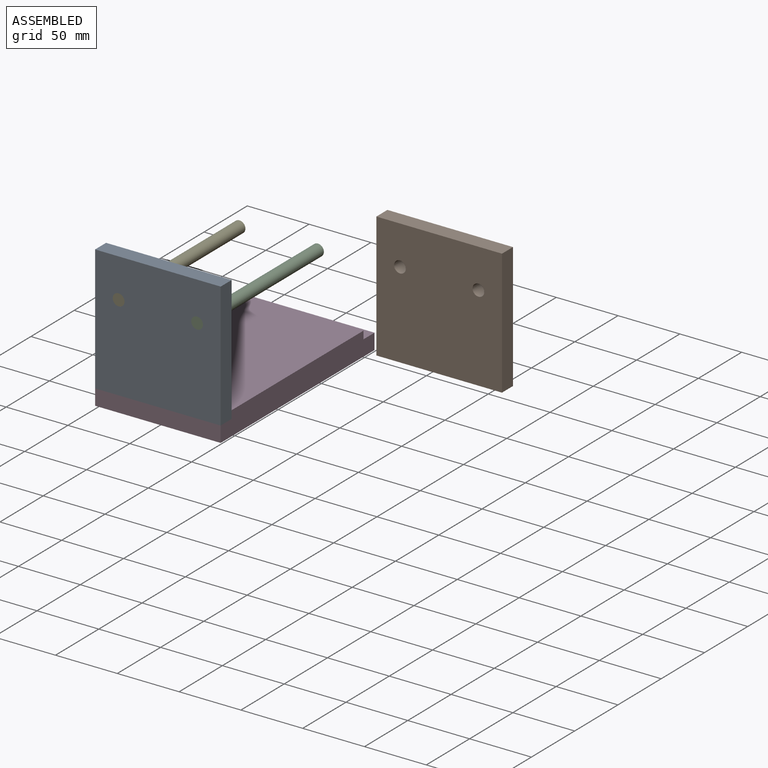
[diagram: assembled view]
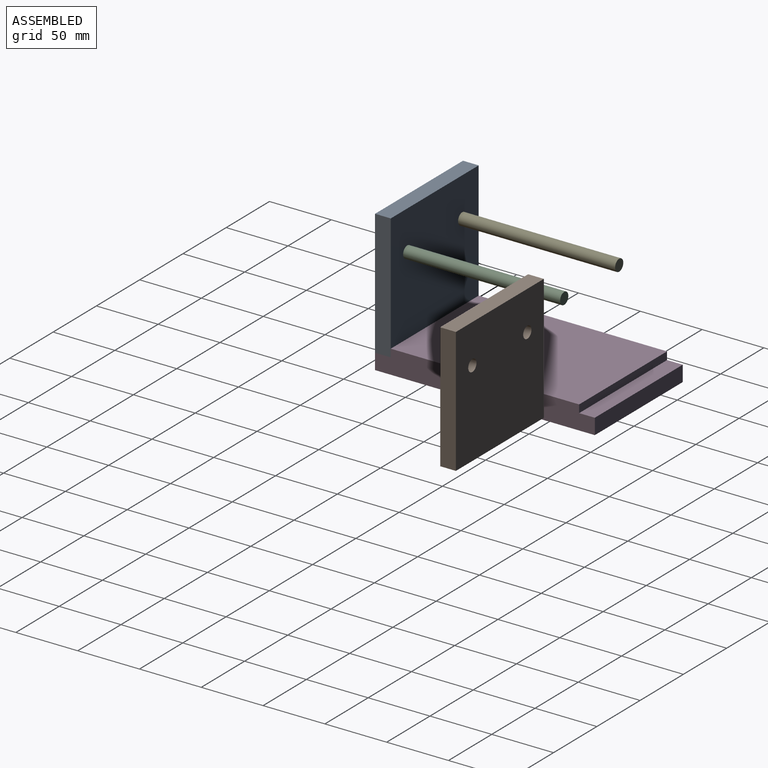
[diagram: assembled view, second angle]
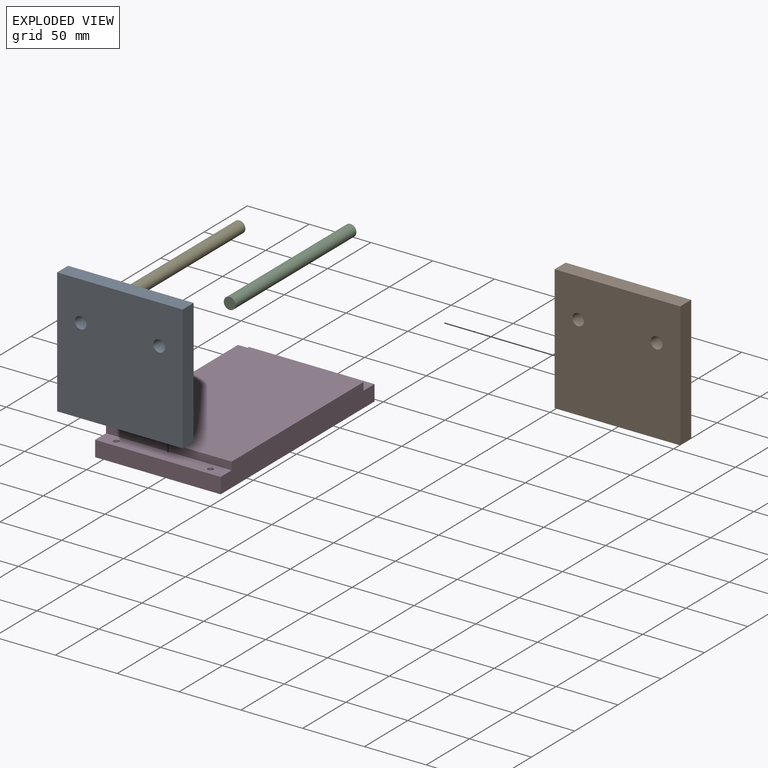
[diagram: exploded view]
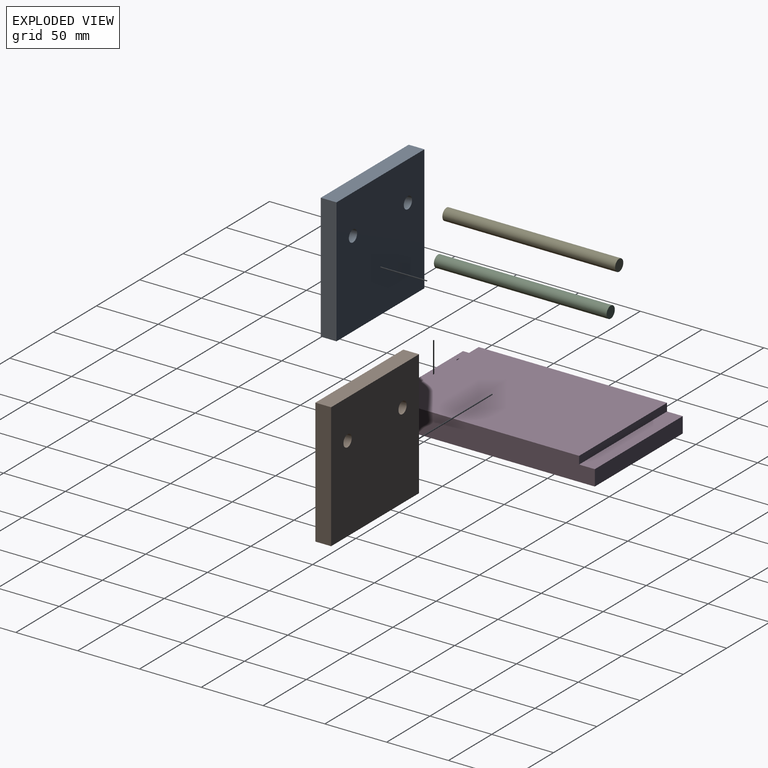
[diagram: exploded view, second angle]
ASSEMBLY  parts=5 mates=4
PART A: 12 faces, bbox 101.6x12.7x101.6 mm
  f0: plane 101.6x12.7mm, normal (1,0,0), area 1290.3mm2, adj f1,f2,f3,f4
  f1: plane 101.6x101.6mm, normal (0,1,0), area 10180mm2, adj f0,f2,f3,f5,f10,f11
  f2: plane 101.6x12.7mm, normal (0,0,1), area 1290.3mm2, adj f0,f1,f4,f5
  f3: plane 101.6x12.7mm, normal (0,0,-1), area 1273.2mm2, adj f0,f1,f4,f5,f6,f8
  f4: plane 101.6x101.6mm, normal (0,-1,0), area 10180mm2, adj f0,f2,f3,f5,f10,f11
  f5: plane 101.6x12.7mm, normal (-1,0,0), area 1290.3mm2, adj f1,f2,f3,f4
  f6: cylinder r=1.65mm len=11.05mm, axis (0,0,-1), area 114.6mm2, adj f3,f7
  f7: cone r=0mm half-angle=59deg, axis (0,0,-1), area 10mm2, adj f6
  f8: cylinder r=1.65mm len=11.05mm, axis (0,0,-1), area 114.6mm2, adj f3,f9
  f9: cone r=0mm half-angle=59deg, axis (0,0,-1), area 10mm2, adj f8
  f10: cylinder r=4.76mm len=12.7mm, axis (0,1,0), area 380mm2, adj f1,f4
  f11: cylinder r=4.76mm len=12.7mm, axis (0,1,0), area 380mm2, adj f1,f4
PART B: same geometry as A
PART C: 3 faces, bbox 9.5x139.7x9.5 mm
  f0: plane 9.53x9.53mm, normal (0,-1,0), area 71.3mm2, adj f2
  f1: plane 9.53x9.53mm, normal (0,1,0), area 71.3mm2, adj f2
  f2: cylinder r=4.76mm len=139.7mm, axis (0,-1,0), area 4180.3mm2, adj f0,f1
PART D: 16 faces, bbox 101.6x177.8x19.1 mm
  f0: plane 101.6x12.7mm, normal (0,-1,0), area 1290.3mm2, adj f1,f7,f8,f9
  f1: plane 177.8x101.6mm, normal (0,0,-1), area 17957.6mm2, adj f0,f2,f8,f9,f12,f15
  f2: plane 101.6x12.7mm, normal (0,1,0), area 1290.3mm2, adj f1,f3,f8,f9
  f3: plane 101.6x12.7mm, normal (0,0,1), area 1290.3mm2, adj f2,f4,f8,f9
  f4: plane 101.6x6.35mm, normal (0,1,0), area 645.2mm2, adj f3,f5,f8,f9
  f5: plane 152.4x101.6mm, normal (0,0,1), area 15483.8mm2, adj f4,f6,f8,f9
  f6: plane 101.6x6.35mm, normal (0,-1,0), area 645.2mm2, adj f5,f7,f8,f9
  f7: plane 101.6x12.7mm, normal (0,0,1), area 1258.5mm2, adj f0,f6,f8,f9,f10,f13
  f8: plane 177.8x19.05mm, normal (1,0,0), area 3225.8mm2, adj f0,f1,f2,f3,f4,f5,f6,f7
  f9: plane 177.8x19.05mm, normal (-1,0,0), area 3225.8mm2, adj f0,f1,f2,f3,f4,f5,f6,f7
  f10: cylinder r=2.25mm len=8.7mm, axis (0,0,-1), area 123mm2, adj f7,f11
  f11: plane 8.25x8.25mm, normal (0,0,-1), area 37.6mm2, adj f10,f12
  f12: cylinder r=4.12mm len=8.25mm, axis (0,0,-1), area 103.7mm2, adj f1,f11
  f13: cylinder r=2.25mm len=8.7mm, axis (0,0,-1), area 123mm2, adj f7,f14
  f14: plane 8.25x8.25mm, normal (0,0,-1), area 37.6mm2, adj f13,f15
  f15: cylinder r=4.12mm len=8.25mm, axis (0,0,-1), area 103.7mm2, adj f1,f14
PART E: 3 faces, bbox 9.5x139.7x9.5 mm
  f0: plane 9.53x9.53mm, normal (0,-1,0), area 71.3mm2, adj f2
  f1: plane 9.53x9.53mm, normal (0,1,0), area 71.3mm2, adj f2
  f2: cylinder r=4.76mm len=139.7mm, axis (0,-1,0), area 4180.3mm2, adj f0,f1
PLACE A rot(axis=(0,-1,0),0deg) t=(0,0,0)mm
PLACE B t=(127.96,142.31,3.93)mm
PLACE C rot(axis=(0,-1,0),9.1deg) t=(13.4,0,-3.97)mm
PLACE D rot(axis=(0,0,-1),0deg) t=(0,0,0)mm fixed
PLACE E rot(axis=(0,-1,0),9.1deg) t=(12.61,0,6.03)mm
MATE revolute A.f10 <-> E.f2  axis (0,-1,0) through (-31.75,-88.9,82.55)mm
MATE revolute A.f8 <-> D.f13  axis (0,0,-1) through (-38.1,-82.55,12.7)mm
MATE revolute C.f2 <-> A.f11  axis (0,-1,0) through (31.75,-88.9,82.55)mm
MATE planar A.f1 <-> D.f6  axis (0,1,0) through (0,-76.2,63.23)mm
